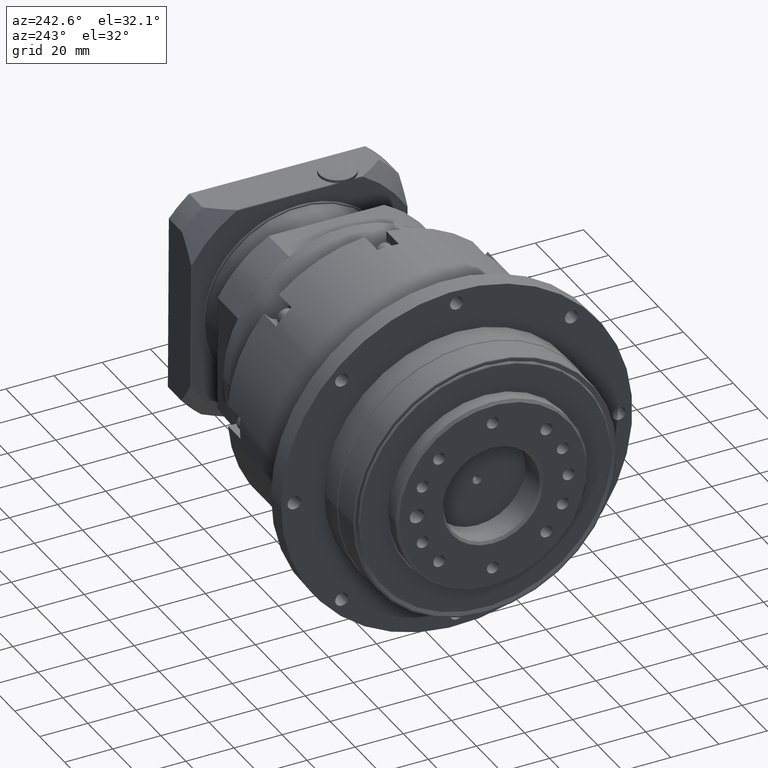
[diagram: clean part render]
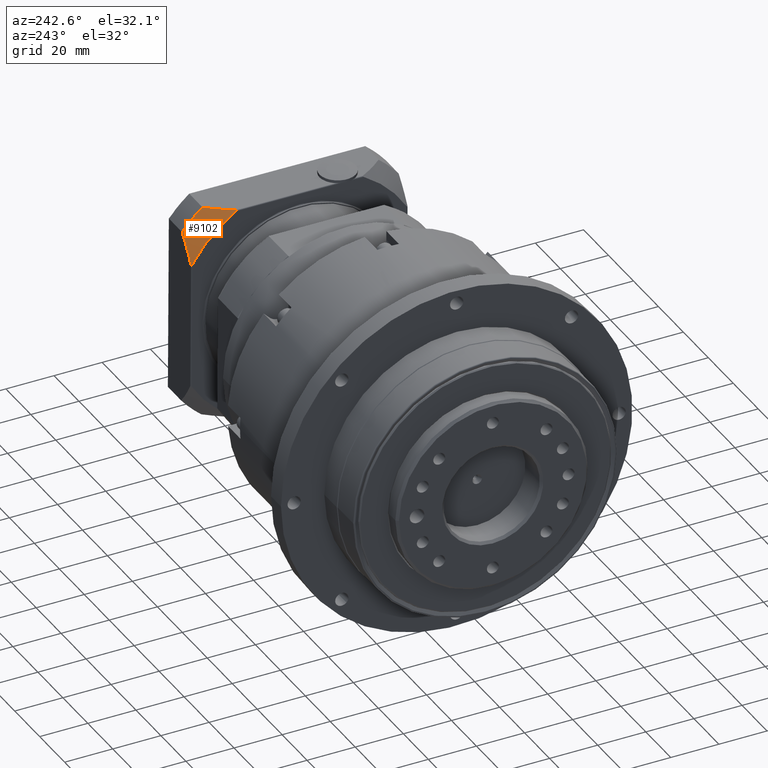
[diagram: same view with one face highlighted and labeled with its STEP entity id]
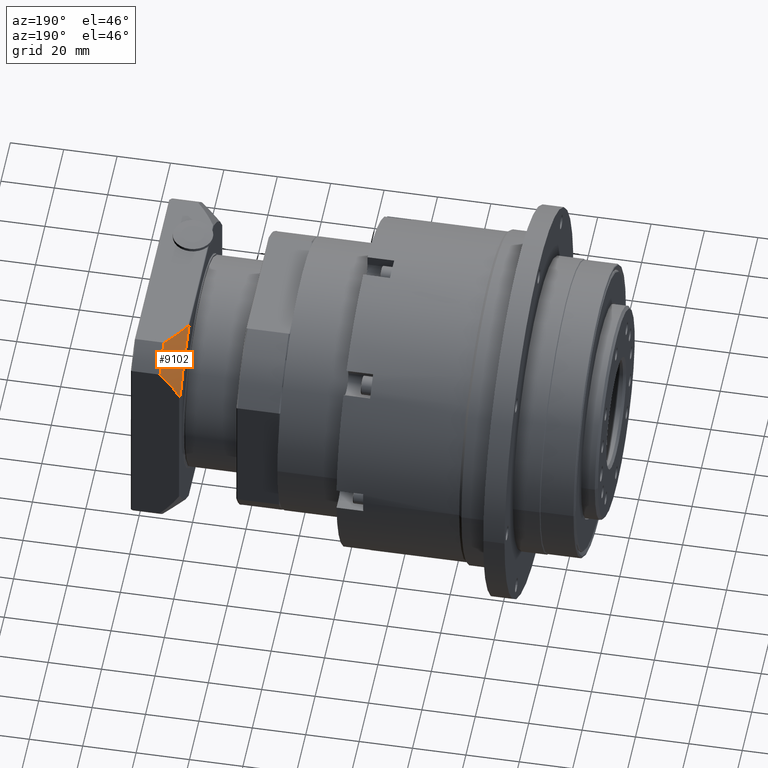
[diagram: same view with one face highlighted and labeled with its STEP entity id]
A machine part, auxiliary view. The second image highlights one B-rep face of the part: STEP entity #9102.
A second angle (auxiliary view) of the same face is appended — the face is thin or edge-on in the first view.
In plain terms, the highlighted spherical surface has radius 71 mm.
Its self-contained STEP definition (entity closure, byte-faithful):
#15=SPHERICAL_SURFACE('',#9991,71.);
#76=B_SPLINE_CURVE_WITH_KNOTS('',3,(#15007,#15008,#15009,#15010,#15011,
#15012,#15013,#15014,#15015,#15016,#15017,#15018,#15019,#15020,#15021,#15022,
#15023,#15024,#15025),.UNSPECIFIED.,.F.,.F.,(4,2,2,2,3,2,2,2,4),(-0.0516311688356982,
-0.0359456465529046,-0.0132459338235235,-0.00662296691176179,0.,0.0101172394984022,
0.0202344789968044,0.0404689579936087,0.0570529004931127),.UNSPECIFIED.);
#77=B_SPLINE_CURVE_WITH_KNOTS('',3,(#15029,#15030,#15031,#15032,#15033,
#15034,#15035,#15036,#15037,#15038,#15039,#15040,#15041,#15042,#15043,#15044,
#15045,#15046,#15047),.UNSPECIFIED.,.F.,.F.,(4,2,2,2,3,2,2,2,4),(-0.0570529004931125,
-0.0404689579936092,-0.0202344789968045,-0.0101172394984023,0.,0.00662296691176066,
0.0132459338235213,0.0359456465529062,0.0516311688356997),.UNSPECIFIED.);
#2189=FACE_OUTER_BOUND('',#2957,.T.);
#2957=EDGE_LOOP('',(#6989,#6990,#6991,#6992,#6993,#6994));
#3721=CIRCLE('',#9992,51.8531580523308);
#3722=CIRCLE('',#9993,54.9181208709839);
#3723=CIRCLE('',#9994,58.);
#3724=CIRCLE('',#9995,54.9181208709839);
#4396=VERTEX_POINT('',#15005);
#4397=VERTEX_POINT('',#15006);
#4398=VERTEX_POINT('',#15026);
#4399=VERTEX_POINT('',#15028);
#4400=VERTEX_POINT('',#15048);
#4401=VERTEX_POINT('',#15050);
#5370=EDGE_CURVE('',#4396,#4397,#76,.T.);
#5371=EDGE_CURVE('',#4398,#4396,#3721,.T.);
#5372=EDGE_CURVE('',#4399,#4398,#77,.T.);
#5373=EDGE_CURVE('',#4400,#4399,#3722,.T.);
#5374=EDGE_CURVE('',#4401,#4400,#3723,.T.);
#5375=EDGE_CURVE('',#4397,#4401,#3724,.T.);
#6989=ORIENTED_EDGE('',*,*,#5370,.F.);
#6990=ORIENTED_EDGE('',*,*,#5371,.F.);
#6991=ORIENTED_EDGE('',*,*,#5372,.F.);
#6992=ORIENTED_EDGE('',*,*,#5373,.F.);
#6993=ORIENTED_EDGE('',*,*,#5374,.F.);
#6994=ORIENTED_EDGE('',*,*,#5375,.F.);
#9102=ADVANCED_FACE('',(#2189),#15,.T.);
#9991=AXIS2_PLACEMENT_3D('',#15004,#11852,#11853);
#9992=AXIS2_PLACEMENT_3D('',#15027,#11854,#11855);
#9993=AXIS2_PLACEMENT_3D('',#15049,#11856,#11857);
#9994=AXIS2_PLACEMENT_3D('',#15051,#11858,#11859);
#9995=AXIS2_PLACEMENT_3D('',#15052,#11860,#11861);
#11852=DIRECTION('center_axis',(1.00076441656352E-15,0.00560497178188673,
-0.999984292022292));
#11853=DIRECTION('ref_axis',(1.,-2.10160527478339E-15,1.00076441656352E-15));
#11854=DIRECTION('center_axis',(-1.,2.13536540359912E-15,-9.7954228509412E-16));
#11855=DIRECTION('ref_axis',(-9.91495561296931E-16,-0.00560497178188668,
0.999984292022292));
#11856=DIRECTION('center_axis',(-9.91495561296932E-16,-0.00560497178188688,
0.999984292022292));
#11857=DIRECTION('ref_axis',(2.12984155445985E-15,0.999984292022292,0.00560497178188688));
#11858=DIRECTION('center_axis',(1.,-2.13536540359912E-15,9.7954228509412E-16));
#11859=DIRECTION('ref_axis',(9.91495561296931E-16,0.00560497178188668,-0.999984292022292));
#11860=DIRECTION('center_axis',(2.12984155445985E-15,0.999984292022292,
0.00560497178188678));
#11861=DIRECTION('ref_axis',(9.91495561296931E-16,0.00560497178188678,-0.999984292022292));
#15004=CARTESIAN_POINT('Origin',(86.8622571643427,50.7922089034676,19.0744353637578));
#15005=CARTESIAN_POINT('',(38.3622571643428,95.1423186467163,45.9411018068021));
#15006=CARTESIAN_POINT('',(38.8622571643428,95.6419427432651,46.0095680810719));
#15007=CARTESIAN_POINT('Ctrl Pts',(38.3622571643428,95.1423186467163,45.9411018068021));
#15008=CARTESIAN_POINT('Ctrl Pts',(38.3622571643428,95.1702757600178,45.8949516435261));
#15009=CARTESIAN_POINT('Ctrl Pts',(38.364494511196,95.1995101512151,45.8505692755055));
#15010=CARTESIAN_POINT('Ctrl Pts',(38.3779077149675,95.2755340632986,45.7485307841304));
#15011=CARTESIAN_POINT('Ctrl Pts',(38.3954014616664,95.334539904432,45.6817721826882));
#15012=CARTESIAN_POINT('Ctrl Pts',(38.4376379572777,95.4087474306776,45.6342025290602));
#15013=CARTESIAN_POINT('Ctrl Pts',(38.4496549945038,95.4274630579799,45.6246632191663));
#15014=CARTESIAN_POINT('Ctrl Pts',(38.4774106863462,95.4641805109214,45.6135036494126));
#15015=CARTESIAN_POINT('Ctrl Pts',(38.4931620106996,95.4821807257216,45.6119096203313));
#15016=CARTESIAN_POINT('Ctrl Pts',(38.5087037737495,95.4977106468948,45.6140658881542));
#15017=CARTESIAN_POINT('Ctrl Pts',(38.5324453598238,95.5214341433269,45.617359801332));
#15018=CARTESIAN_POINT('Ctrl Pts',(38.5560971244683,95.5404183598709,45.6284125862018));
#15019=CARTESIAN_POINT('Ctrl Pts',(38.6030392062379,95.5723930086115,45.6598457849593));
#15020=CARTESIAN_POINT('Ctrl Pts',(38.6263217198614,95.5853412382914,45.6802807436928));
#15021=CARTESIAN_POINT('Ctrl Pts',(38.6947158579054,95.6171772671168,45.7505463901305));
#15022=CARTESIAN_POINT('Ctrl Pts',(38.7380511407002,95.6288516826002,45.8090722260511));
#15023=CARTESIAN_POINT('Ctrl Pts',(38.805439002467,95.6402117927582,45.9110134029901));
#15024=CARTESIAN_POINT('Ctrl Pts',(38.8343905391787,95.64222371268,45.9594402637888));
#15025=CARTESIAN_POINT('Ctrl Pts',(38.8622571643428,95.6419427432652,46.0095680810719));
#15026=CARTESIAN_POINT('',(38.3622571643427,77.1600328579242,63.7229276104931));
#15027=CARTESIAN_POINT('Origin',(38.3622571643427,50.7922089034677,19.0744353637577));
#15028=CARTESIAN_POINT('',(38.8622571643427,77.222894160412,64.2232878059666));
#15029=CARTESIAN_POINT('Ctrl Pts',(38.8622571643427,77.222894160412,64.2232878059666));
#15030=CARTESIAN_POINT('Ctrl Pts',(38.8343905391786,77.1727663431289,64.2230068365517));
#15031=CARTESIAN_POINT('Ctrl Pts',(38.8054390024669,77.124365078213,64.2204521891925));
#15032=CARTESIAN_POINT('Ctrl Pts',(38.7380511407002,77.0225576505761,64.2079500559164));
#15033=CARTESIAN_POINT('Ctrl Pts',(38.6947158579054,76.9641663593997,64.1956203129409));
#15034=CARTESIAN_POINT('Ctrl Pts',(38.6263217198613,76.8942620023327,64.1629986228601));
#15035=CARTESIAN_POINT('Ctrl Pts',(38.6030392062378,76.8739734742006,64.1498221355999));
#15036=CARTESIAN_POINT('Ctrl Pts',(38.5560971244683,76.8429006788131,64.1174971370227));
#15037=CARTESIAN_POINT('Ctrl Pts',(38.5324453598238,76.8320613970587,64.0983902141355));
#15038=CARTESIAN_POINT('Ctrl Pts',(38.5087037737494,76.8290336257209,64.0746312842836));
#15039=CARTESIAN_POINT('Ctrl Pts',(38.4931620106996,76.8270515801847,64.0590781676164));
#15040=CARTESIAN_POINT('Ctrl Pts',(38.4774106863461,76.8288472873333,64.0410969524906));
#15041=CARTESIAN_POINT('Ctrl Pts',(38.4496549945037,76.8404177500253,64.0045069027407));
#15042=CARTESIAN_POINT('Ctrl Pts',(38.4376379572776,76.8501662583811,63.9858993848136));
#15043=CARTESIAN_POINT('Ctrl Pts',(38.3954014616663,76.8985647722547,63.9122297658883));
#15044=CARTESIAN_POINT('Ctrl Pts',(38.3779077149674,76.9659806209183,63.8539759805749));
#15045=CARTESIAN_POINT('Ctrl Pts',(38.3644945111959,77.0688649114476,63.7791006729436));
#15046=CARTESIAN_POINT('Ctrl Pts',(38.3622571643427,77.1135722015888,63.7503656346103));
#15047=CARTESIAN_POINT('Ctrl Pts',(38.3622571643427,77.1600328579242,63.7229276104931));
#15048=CARTESIAN_POINT('',(45.9110667054562,87.1317593085455,64.27882758793));
#15049=CARTESIAN_POINT('Origin',(86.8622571643427,50.5399851732827,64.0737285047609));
#15050=CARTESIAN_POINT('',(45.9110667054562,95.5864029613016,55.9184332292054));
#15051=CARTESIAN_POINT('Origin',(45.9110667054562,50.7922089034677,19.0744353637577));
#15052=CARTESIAN_POINT('Origin',(86.8622571643428,95.7915020444707,19.3266590939427));